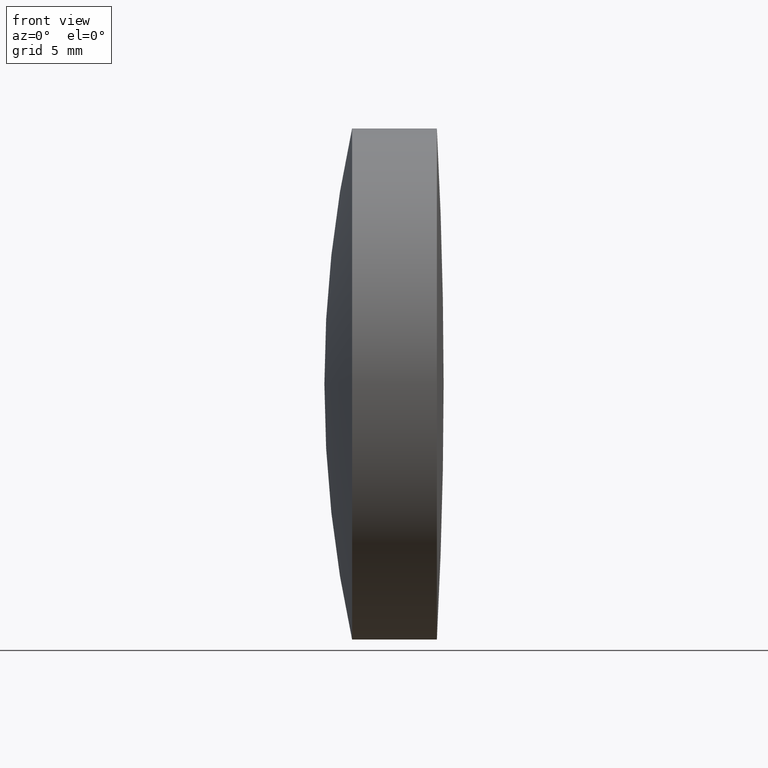
[diagram: clean part render]
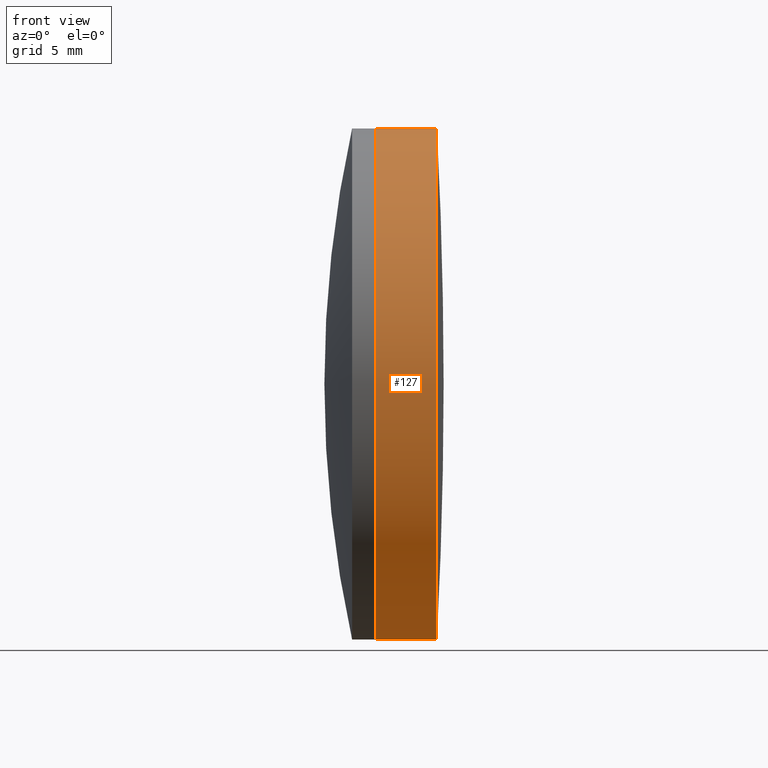
[diagram: same view with one face highlighted and labeled with its STEP entity id]
A machine part, front view. The second image highlights one B-rep face of the part: STEP entity #127.
In plain terms, the highlighted cylindrical surface (partial cylindrical patch) has radius 15 mm, axis along (-1, -0, -0).
Its self-contained STEP definition (entity closure, byte-faithful):
#2 = LINE ( 'NONE', #83, #293 ) ;
#3 = CYLINDRICAL_SURFACE ( 'NONE', #71, 14.99999999999988100 ) ;
#7 = AXIS2_PLACEMENT_3D ( 'NONE', #138, #292, #113 ) ;
#12 = ORIENTED_EDGE ( 'NONE', *, *, #234, .T. ) ;
#19 = ORIENTED_EDGE ( 'NONE', *, *, #150, .T. ) ;
#35 = DIRECTION ( 'NONE',  ( -1.000000000000000000, -0.0000000000000000000, -0.0000000000000000000 ) ) ;
#44 = CARTESIAN_POINT ( 'NONE',  ( 239.5046556379369900, 1.836970198721015000E-015, -14.99999999999987400 ) ) ;
#49 = CARTESIAN_POINT ( 'NONE',  ( 239.5046556379369900, 0.0000000000000000000, 14.99999999999987400 ) ) ;
#59 = VERTEX_POINT ( 'NONE', #173 ) ;
#60 = DIRECTION ( 'NONE',  ( -1.000000000000000000, -0.0000000000000000000, -0.0000000000000000000 ) ) ;
#71 = AXIS2_PLACEMENT_3D ( 'NONE', #265, #60, #110 ) ;
#77 = CARTESIAN_POINT ( 'NONE',  ( 235.8914090782225800, 0.0000000000000000000, 14.99999999999989200 ) ) ;
#82 = ORIENTED_EDGE ( 'NONE', *, *, #130, .F. ) ;
#83 = CARTESIAN_POINT ( 'NONE',  ( -0.5519199926577972300, 0.0000000000000000000, 14.99999999999988100 ) ) ;
#105 = EDGE_CURVE ( 'NONE', #59, #257, #132, .T. ) ;
#108 = AXIS2_PLACEMENT_3D ( 'NONE', #295, #114, #267 ) ;
#110 = DIRECTION ( 'NONE',  ( 0.0000000000000000000, 0.0000000000000000000, 1.000000000000000000 ) ) ;
#113 = DIRECTION ( 'NONE',  ( 0.0000000000000000000, 0.0000000000000000000, 1.000000000000000000 ) ) ;
#114 = DIRECTION ( 'NONE',  ( -1.000000000000000000, -0.0000000000000000000, -0.0000000000000000000 ) ) ;
#127 = ADVANCED_FACE ( 'NONE', ( #275 ), #3, .T. ) ;
#130 = EDGE_CURVE ( 'NONE', #339, #59, #309, .T. ) ;
#132 = CIRCLE ( 'NONE', #108, 14.99999999999988600 ) ;
#138 = CARTESIAN_POINT ( 'NONE',  ( 239.5046556379369900, 0.0000000000000000000, 0.0000000000000000000 ) ) ;
#150 = EDGE_CURVE ( 'NONE', #339, #285, #315, .T. ) ;
#167 = EDGE_LOOP ( 'NONE', ( #82, #19, #12, #319 ) ) ;
#173 = CARTESIAN_POINT ( 'NONE',  ( 235.8914090782225800, 1.836970198721016600E-015, -14.99999999999989200 ) ) ;
#234 = EDGE_CURVE ( 'NONE', #285, #257, #2, .T. ) ;
#257 = VERTEX_POINT ( 'NONE', #77 ) ;
#265 = CARTESIAN_POINT ( 'NONE',  ( -0.5519199926577972300, 0.0000000000000000000, 0.0000000000000000000 ) ) ;
#267 = DIRECTION ( 'NONE',  ( 0.0000000000000000000, 0.0000000000000000000, 1.000000000000000000 ) ) ;
#275 = FACE_OUTER_BOUND ( 'NONE', #167, .T. ) ;
#285 = VERTEX_POINT ( 'NONE', #49 ) ;
#291 = DIRECTION ( 'NONE',  ( -1.000000000000000000, -0.0000000000000000000, -0.0000000000000000000 ) ) ;
#292 = DIRECTION ( 'NONE',  ( -1.000000000000000000, -0.0000000000000000000, -0.0000000000000000000 ) ) ;
#293 = VECTOR ( 'NONE', #291, 1000.000000000000000 ) ;
#295 = CARTESIAN_POINT ( 'NONE',  ( 235.8914090782225800, 0.0000000000000000000, 0.0000000000000000000 ) ) ;
#309 = LINE ( 'NONE', #327, #341 ) ;
#315 = CIRCLE ( 'NONE', #7, 14.99999999999987400 ) ;
#319 = ORIENTED_EDGE ( 'NONE', *, *, #105, .F. ) ;
#327 = CARTESIAN_POINT ( 'NONE',  ( -0.5519199926577972300, 1.836970198721015400E-015, -14.99999999999988100 ) ) ;
#339 = VERTEX_POINT ( 'NONE', #44 ) ;
#341 = VECTOR ( 'NONE', #35, 1000.000000000000000 ) ;